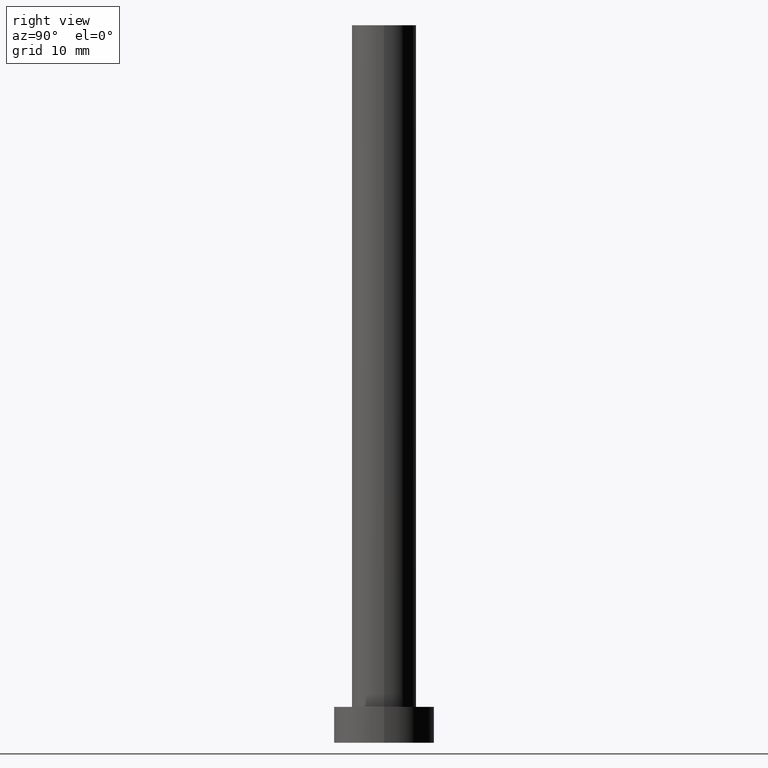
[diagram: clean part render]
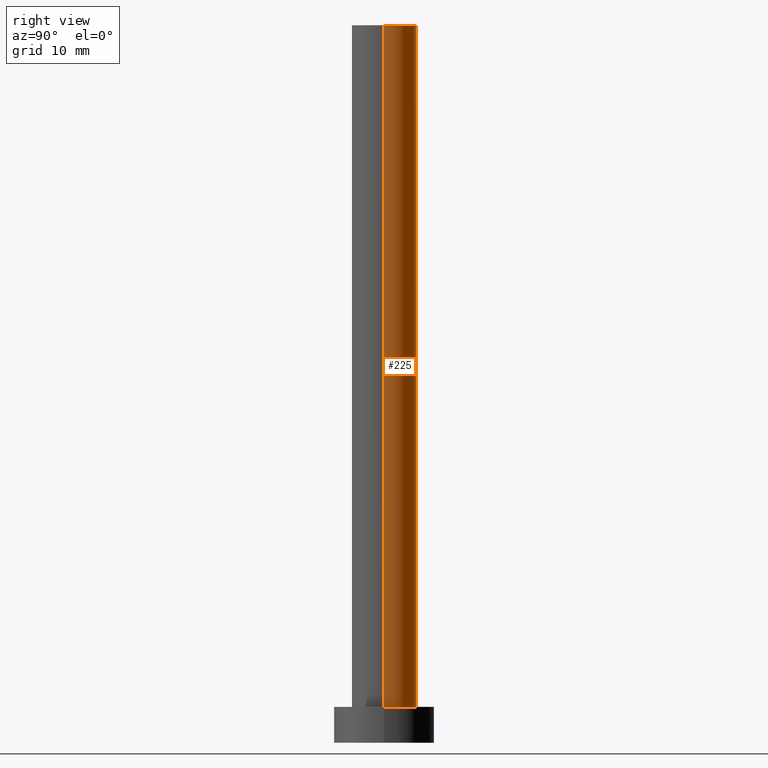
[diagram: same view with one face highlighted and labeled with its STEP entity id]
A machine part, right view. The second image highlights one B-rep face of the part: STEP entity #225.
In plain terms, the highlighted cylindrical surface (edge-blend (fillet) strip) has radius 4.5 mm, axis along (-0, -0, -1).
Its self-contained STEP definition (entity closure, byte-faithful):
#2 = EDGE_CURVE ( 'NONE', #249, #144, #247, .T. ) ;
#11 = CARTESIAN_POINT ( 'NONE',  ( 4.500000000000000000, 5.510910596163088569E-16, 5.000000000000000000 ) ) ;
#20 = EDGE_CURVE ( 'NONE', #249, #45, #159, .T. ) ;
#24 = DIRECTION ( 'NONE',  ( -0.000000000000000000, -0.000000000000000000, -1.000000000000000000 ) ) ;
#25 = DIRECTION ( 'NONE',  ( 0.000000000000000000, 0.000000000000000000, 1.000000000000000000 ) ) ;
#27 = CARTESIAN_POINT ( 'NONE',  ( 4.500000000000000000, 5.510910596163088569E-16, 100.0000000000000000 ) ) ;
#30 = CARTESIAN_POINT ( 'NONE',  ( -4.500000000000000000, 0.000000000000000000, 100.0000000000000000 ) ) ;
#36 = AXIS2_PLACEMENT_3D ( 'NONE', #180, #25, #112 ) ;
#39 = CARTESIAN_POINT ( 'NONE',  ( -4.500000000000000000, 0.000000000000000000, 5.000000000000000000 ) ) ;
#45 = VERTEX_POINT ( 'NONE', #222 ) ;
#52 = EDGE_LOOP ( 'NONE', ( #60, #156, #106, #245 ) ) ;
#54 = CARTESIAN_POINT ( 'NONE',  ( 0.000000000000000000, 0.000000000000000000, 100.0000000000000000 ) ) ;
#60 = ORIENTED_EDGE ( 'NONE', *, *, #20, .F. ) ;
#62 = DIRECTION ( 'NONE',  ( -0.000000000000000000, -0.000000000000000000, -1.000000000000000000 ) ) ;
#85 = AXIS2_PLACEMENT_3D ( 'NONE', #162, #123, #217 ) ;
#96 = VECTOR ( 'NONE', #62, 1000.000000000000000 ) ;
#98 = EDGE_CURVE ( 'NONE', #144, #223, #145, .T. ) ;
#106 = ORIENTED_EDGE ( 'NONE', *, *, #98, .T. ) ;
#112 = DIRECTION ( 'NONE',  ( 1.000000000000000000, 0.000000000000000000, 0.000000000000000000 ) ) ;
#123 = DIRECTION ( 'NONE',  ( 0.000000000000000000, 0.000000000000000000, 1.000000000000000000 ) ) ;
#144 = VERTEX_POINT ( 'NONE', #11 ) ;
#145 = CIRCLE ( 'NONE', #36, 4.500000000000000000 ) ;
#151 = DIRECTION ( 'NONE',  ( -1.000000000000000000, 0.000000000000000000, 0.000000000000000000 ) ) ;
#156 = ORIENTED_EDGE ( 'NONE', *, *, #2, .T. ) ;
#159 = CIRCLE ( 'NONE', #85, 4.500000000000000000 ) ;
#160 = LINE ( 'NONE', #30, #211 ) ;
#162 = CARTESIAN_POINT ( 'NONE',  ( 0.000000000000000000, 0.000000000000000000, 100.0000000000000000 ) ) ;
#168 = AXIS2_PLACEMENT_3D ( 'NONE', #54, #24, #151 ) ;
#170 = EDGE_CURVE ( 'NONE', #45, #223, #160, .T. ) ;
#173 = CARTESIAN_POINT ( 'NONE',  ( 4.500000000000000000, 5.510910596163088569E-16, 100.0000000000000000 ) ) ;
#174 = CYLINDRICAL_SURFACE ( 'NONE', #168, 4.500000000000000000 ) ;
#180 = CARTESIAN_POINT ( 'NONE',  ( 0.000000000000000000, 0.000000000000000000, 5.000000000000000000 ) ) ;
#211 = VECTOR ( 'NONE', #248, 1000.000000000000000 ) ;
#217 = DIRECTION ( 'NONE',  ( 1.000000000000000000, 0.000000000000000000, 0.000000000000000000 ) ) ;
#222 = CARTESIAN_POINT ( 'NONE',  ( -4.500000000000000000, 0.000000000000000000, 100.0000000000000000 ) ) ;
#223 = VERTEX_POINT ( 'NONE', #39 ) ;
#225 = ADVANCED_FACE ( 'NONE', ( #242 ), #174, .T. ) ;
#242 = FACE_OUTER_BOUND ( 'NONE', #52, .T. ) ;
#245 = ORIENTED_EDGE ( 'NONE', *, *, #170, .F. ) ;
#247 = LINE ( 'NONE', #27, #96 ) ;
#248 = DIRECTION ( 'NONE',  ( -0.000000000000000000, -0.000000000000000000, -1.000000000000000000 ) ) ;
#249 = VERTEX_POINT ( 'NONE', #173 ) ;